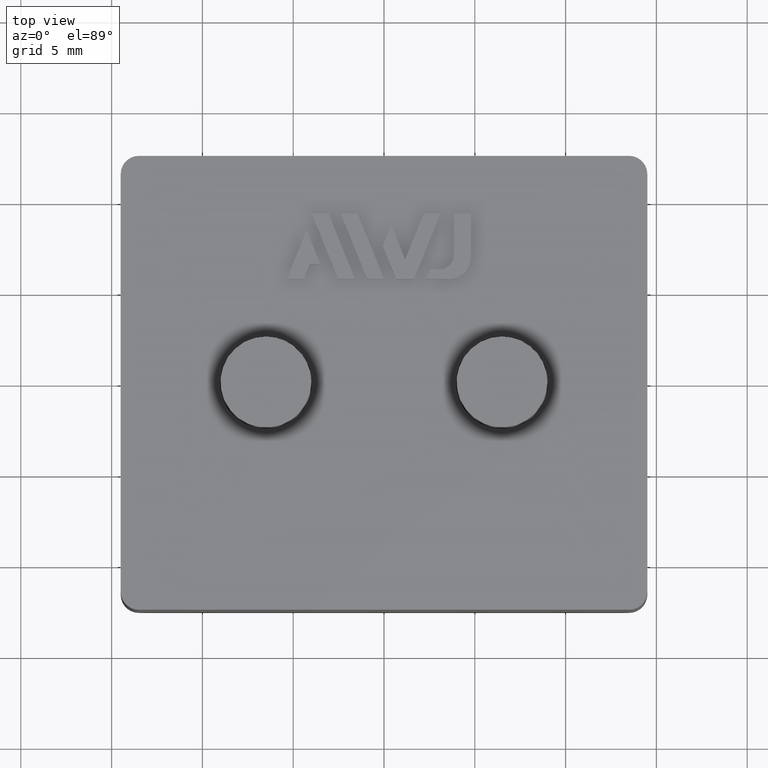
[diagram: clean part render]
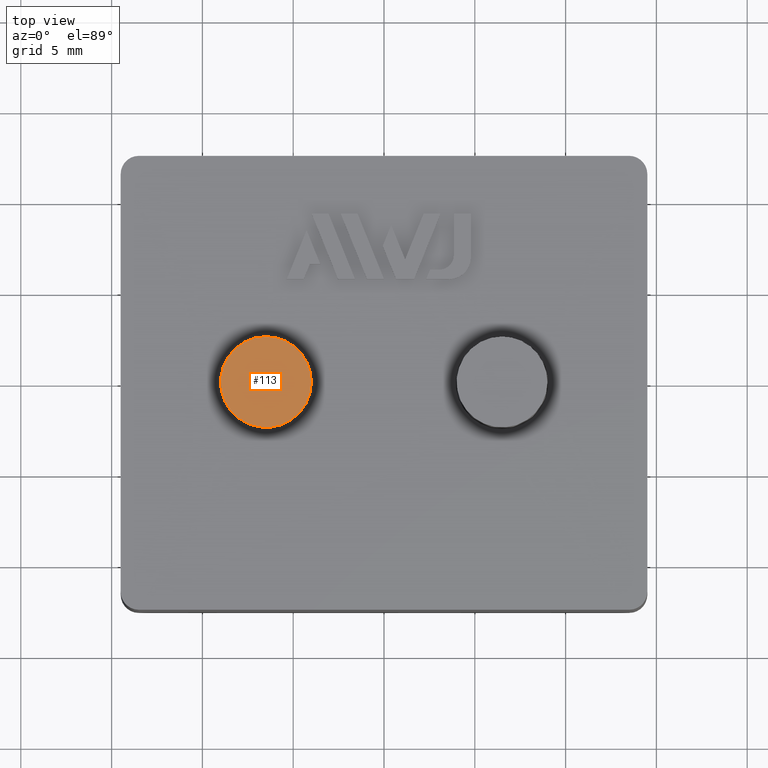
[diagram: same view with one face highlighted and labeled with its STEP entity id]
A machine part, top view. The second image highlights one B-rep face of the part: STEP entity #113.
In plain terms, the highlighted planar face has unit normal (0, -0, -1).
Its self-contained STEP definition (entity closure, byte-faithful):
#113 = ADVANCED_FACE( '', ( #373 ), #374, .F. );
#373 = FACE_OUTER_BOUND( '', #785, .T. );
#374 = PLANE( '', #786 );
#785 = EDGE_LOOP( '', ( #1518 ) );
#786 = AXIS2_PLACEMENT_3D( '', #1519, #1520, #1521 );
#1518 = ORIENTED_EDGE( '', *, *, #2834, .F. );
#1519 = CARTESIAN_POINT( '', ( -6.49999999999999, 0.000165124598785068, 12.5000000000000 ) );
#1520 = DIRECTION( '', ( 0.000000000000000, -6.12303176911189E-017, -1.00000000000000 ) );
#1521 = DIRECTION( '', ( 1.00000000000000, 0.000000000000000, 0.000000000000000 ) );
#2834 = EDGE_CURVE( '', #3505, #3505, #3506, .T. );
#3505 = VERTEX_POINT( '', #4508 );
#3506 = CIRCLE( '', #4509, 2.50000000000000 );
#4508 = CARTESIAN_POINT( '', ( -3.99999999999999, 0.000165124598785068, 12.5000000000000 ) );
#4509 = AXIS2_PLACEMENT_3D( '', #5368, #5369, #5370 );
#5368 = CARTESIAN_POINT( '', ( -6.49999999999999, 0.000165124598785068, 12.5000000000000 ) );
#5369 = DIRECTION( '', ( 0.000000000000000, -6.12303176911189E-017, -1.00000000000000 ) );
#5370 = DIRECTION( '', ( 1.00000000000000, 0.000000000000000, 0.000000000000000 ) );